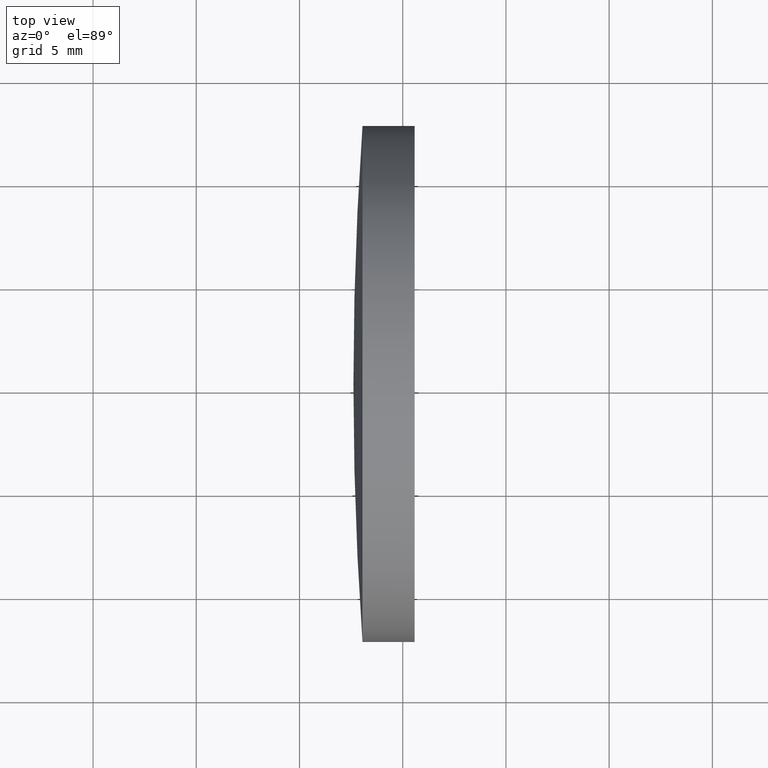
[diagram: clean part render]
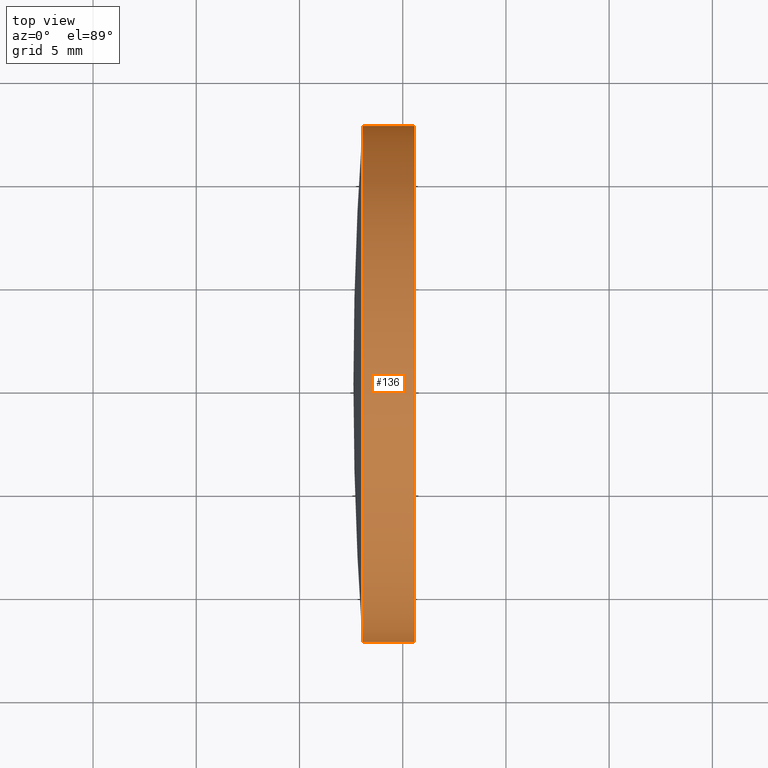
[diagram: same view with one face highlighted and labeled with its STEP entity id]
A machine part, top view. The second image highlights one B-rep face of the part: STEP entity #136.
In plain terms, the highlighted cylindrical surface (partial cylindrical patch) has radius 12.5 mm, axis along (-1, -0, -0).
Its self-contained STEP definition (entity closure, byte-faithful):
#6 = VECTOR ( 'NONE', #80, 1000.000000000000000 ) ;
#11 = VECTOR ( 'NONE', #44, 1000.000000000000000 ) ;
#13 = EDGE_CURVE ( 'NONE', #107, #59, #84, .T. ) ;
#16 = VERTEX_POINT ( 'NONE', #128 ) ;
#28 = DIRECTION ( 'NONE',  ( -1.000000000000000000, -6.937607244762875000E-016, -0.0000000000000000000 ) ) ;
#30 = DIRECTION ( 'NONE',  ( 1.110223024625156100E-015, -1.000000000000000000, 0.0000000000000000000 ) ) ;
#35 = DIRECTION ( 'NONE',  ( 1.110223024625152400E-015, -1.000000000000000000, 0.0000000000000000000 ) ) ;
#37 = CARTESIAN_POINT ( 'NONE',  ( 115.9444912979631800, 52.71684047094028400, 0.0000000000000000000 ) ) ;
#41 = LINE ( 'NONE', #161, #6 ) ;
#44 = DIRECTION ( 'NONE',  ( -1.000000000000000000, -6.937607244762875000E-016, -0.0000000000000000000 ) ) ;
#53 = ORIENTED_EDGE ( 'NONE', *, *, #13, .T. ) ;
#56 = CYLINDRICAL_SURFACE ( 'NONE', #138, 12.50000000000004600 ) ;
#59 = VERTEX_POINT ( 'NONE', #129 ) ;
#63 = LINE ( 'NONE', #37, #11 ) ;
#65 = DIRECTION ( 'NONE',  ( 0.0000000000000000000, -1.000000000000000000, 0.0000000000000000000 ) ) ;
#68 = ORIENTED_EDGE ( 'NONE', *, *, #156, .F. ) ;
#80 = DIRECTION ( 'NONE',  ( -1.000000000000000000, -6.937607244762875000E-016, -0.0000000000000000000 ) ) ;
#84 = CIRCLE ( 'NONE', #147, 12.50000000000007300 ) ;
#88 = CARTESIAN_POINT ( 'NONE',  ( 123.0516406468668300, 77.71684047094032600, 0.0000000000000000000 ) ) ;
#107 = VERTEX_POINT ( 'NONE', #113 ) ;
#113 = CARTESIAN_POINT ( 'NONE',  ( 125.5745081417628500, 52.71684047094019100, 0.0000000000000000000 ) ) ;
#121 = EDGE_CURVE ( 'NONE', #59, #171, #41, .T. ) ;
#125 = CARTESIAN_POINT ( 'NONE',  ( 123.0516406468668300, 65.21684047094032600, 0.0000000000000000000 ) ) ;
#128 = CARTESIAN_POINT ( 'NONE',  ( 123.0516406468668300, 52.71684047094017700, -1.530808498934191500E-015 ) ) ;
#129 = CARTESIAN_POINT ( 'NONE',  ( 125.5745081417628500, 77.71684047094123600, 1.530808498934208100E-015 ) ) ;
#131 = DIRECTION ( 'NONE',  ( -1.000000000000000000, -6.937607244762875000E-016, -0.0000000000000000000 ) ) ;
#134 = AXIS2_PLACEMENT_3D ( 'NONE', #125, #28, #30 ) ;
#136 = ADVANCED_FACE ( 'NONE', ( #177 ), #56, .T. ) ;
#137 = EDGE_CURVE ( 'NONE', #16, #171, #179, .T. ) ;
#138 = AXIS2_PLACEMENT_3D ( 'NONE', #150, #131, #35 ) ;
#143 = DIRECTION ( 'NONE',  ( -1.000000000000000000, -6.937607244762875000E-016, -0.0000000000000000000 ) ) ;
#147 = AXIS2_PLACEMENT_3D ( 'NONE', #173, #143, #65 ) ;
#150 = CARTESIAN_POINT ( 'NONE',  ( 115.9444912979631700, 65.21684047094032600, 0.0000000000000000000 ) ) ;
#153 = ORIENTED_EDGE ( 'NONE', *, *, #137, .F. ) ;
#155 = ORIENTED_EDGE ( 'NONE', *, *, #121, .T. ) ;
#156 = EDGE_CURVE ( 'NONE', #107, #16, #63, .T. ) ;
#161 = CARTESIAN_POINT ( 'NONE',  ( 115.9444912979631500, 77.71684047094038300, 1.530808498934197200E-015 ) ) ;
#171 = VERTEX_POINT ( 'NONE', #88 ) ;
#173 = CARTESIAN_POINT ( 'NONE',  ( 125.5745081417627900, 65.21684047094032600, 0.0000000000000000000 ) ) ;
#177 = FACE_OUTER_BOUND ( 'NONE', #182, .T. ) ;
#179 = CIRCLE ( 'NONE', #134, 12.50000000000000400 ) ;
#182 = EDGE_LOOP ( 'NONE', ( #53, #155, #153, #68 ) ) ;